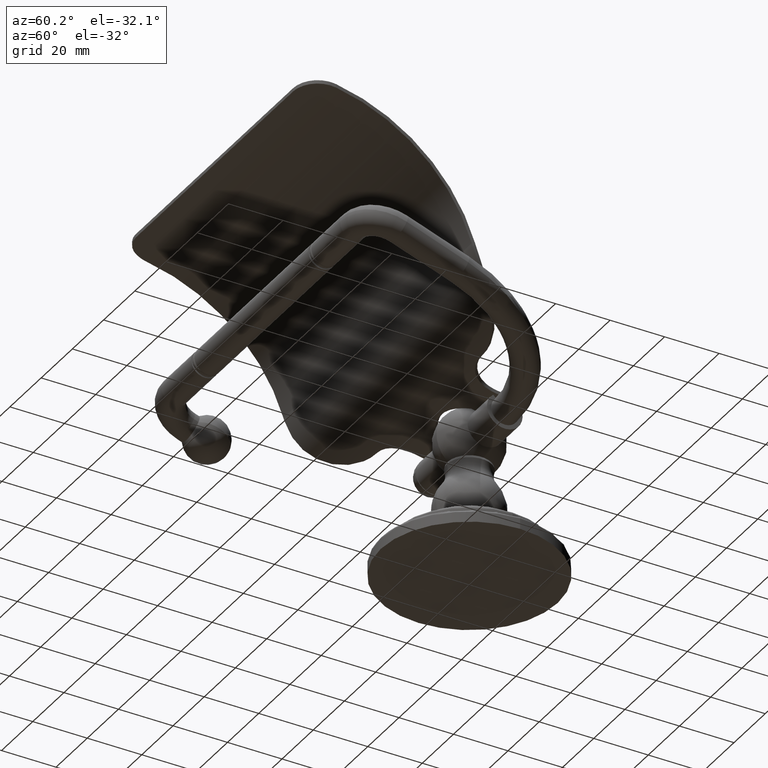
[diagram: clean part render]
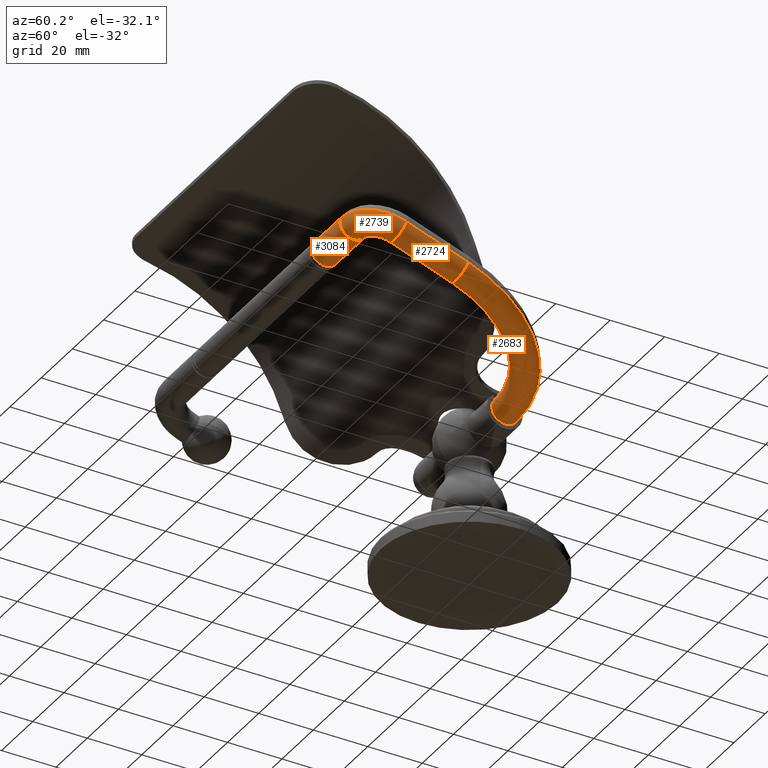
[diagram: same view with one multi-face feature highlighted, each face labeled with its STEP entity id]
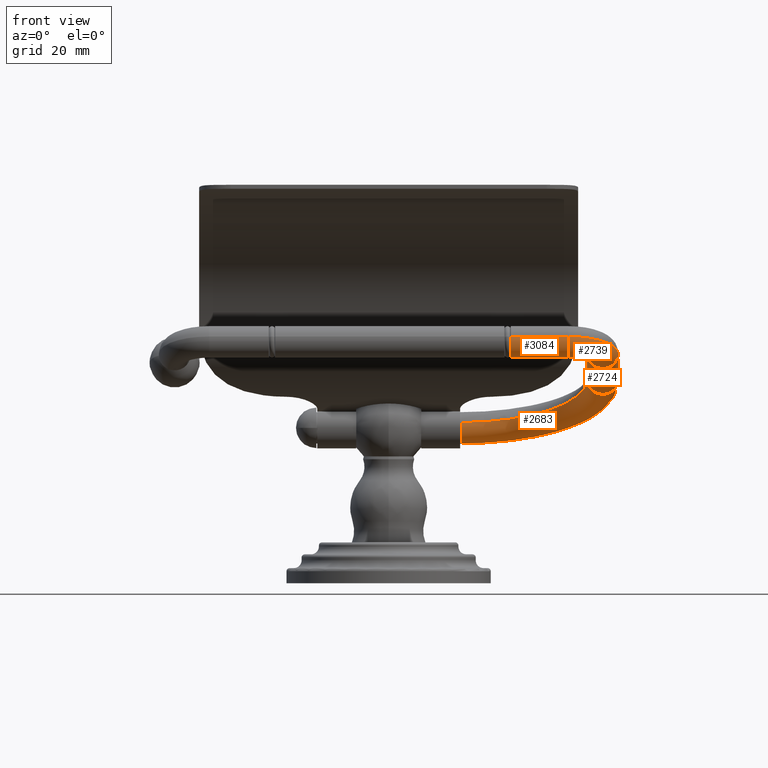
[diagram: same view with one multi-face feature highlighted, each face labeled with its STEP entity id]
A machine part, auxiliary view. The highlighted faces form ONE feature: a constant-radius fillet chain: 4 tangent blend faces with common blend radius 5.0038 mm. The faces share edges in the B-rep.
A second angle (front view) of the same feature is appended — it is thin or edge-on in the first view.
Their STEP definitions:
[1] entity #2683 (Torus):
#1146=CARTESIAN_POINT('',(9.11E-1,0.E0,1.947E0));
#1147=DIRECTION('',(1.E0,0.E0,0.E0));
#1148=DIRECTION('',(0.E0,-9.396926207859E-1,3.420201433257E-1));
#1149=AXIS2_PLACEMENT_3D('',#1146,#1147,#1148);
#1151=CARTESIAN_POINT('',(9.11E-1,-1.665135324033E0,2.553059693973E0));
#1152=DIRECTION('',(0.E0,-3.420201433257E-1,-9.396926207859E-1));
#1153=DIRECTION('',(0.E0,9.396926207859E-1,-3.420201433257E-1));
#1154=AXIS2_PLACEMENT_3D('',#1151,#1152,#1153);
#1161=CARTESIAN_POINT('',(9.11E-1,-1.665135324033E0,2.553059693973E0));
#1162=DIRECTION('',(0.E0,-3.420201433257E-1,-9.396926207859E-1));
#1163=DIRECTION('',(0.E0,9.396926207859E-1,-3.420201433257E-1));
#1164=AXIS2_PLACEMENT_3D('',#1161,#1162,#1163);
#1175=CARTESIAN_POINT('',(2.683E0,-1.665135324033E0,2.553059693973E0));
#1176=DIRECTION('',(0.E0,-9.396926207859E-1,3.420201433257E-1));
#1177=DIRECTION('',(-1.E0,0.E0,0.E0));
#1178=AXIS2_PLACEMENT_3D('',#1175,#1176,#1177);
#1502=CARTESIAN_POINT('',(9.11E-1,1.851194462948E-1,1.879622031765E0));
#1503=CARTESIAN_POINT('',(9.11E-1,-1.851194462948E-1,2.014377968235E0));
#1504=VERTEX_POINT('',#1502);
#1505=VERTEX_POINT('',#1503);
#1506=CARTESIAN_POINT('',(2.88E0,-1.665135324033E0,2.553059693973E0));
#1507=CARTESIAN_POINT('',(2.486E0,-1.665135324033E0,2.553059693973E0));
#1508=VERTEX_POINT('',#1506);
#1509=VERTEX_POINT('',#1507);
#2669=CARTESIAN_POINT('',(9.11E-1,-1.665135324033E0,2.553059693973E0));
#2670=DIRECTION('',(0.E0,-3.420201433257E-1,-9.396926207859E-1));
#2671=DIRECTION('',(0.E0,-9.396926207859E-1,3.420201433257E-1));
#2672=AXIS2_PLACEMENT_3D('',#2669,#2670,#2671);
#2673=TOROIDAL_SURFACE('',#2672,1.772E0,1.97E-1);
#2674=ORIENTED_EDGE('',*,*,#2663,.F.);
#2676=ORIENTED_EDGE('',*,*,#2675,.T.);
#2678=ORIENTED_EDGE('',*,*,#2677,.T.);
#2680=ORIENTED_EDGE('',*,*,#2679,.F.);
#2681=EDGE_LOOP('',(#2674,#2676,#2678,#2680));
#2682=FACE_OUTER_BOUND('',#2681,.F.);
#2683=ADVANCED_FACE('',(#2682),#2673,.T.);
#1150=CIRCLE('',#1149,1.97E-1);
#1155=CIRCLE('',#1154,1.575E0);
#1165=CIRCLE('',#1164,1.969E0);
#1179=CIRCLE('',#1178,1.97E-1);
#2663=EDGE_CURVE('',#1505,#1504,#1150,.T.);
#2675=EDGE_CURVE('',#1505,#1509,#1155,.T.);
#2677=EDGE_CURVE('',#1509,#1508,#1179,.T.);
#2679=EDGE_CURVE('',#1504,#1508,#1165,.T.);
[2] entity #2724 (Cylinder):
#1171=DIRECTION('',(0.E0,-9.396926207859E-1,3.420201433257E-1));
#1172=VECTOR('',#1171,9.45E-1);
#1173=CARTESIAN_POINT('',(2.88E0,-1.665135324033E0,2.553059693973E0));
#1174=LINE('',#1173,#1172);
#1175=CARTESIAN_POINT('',(2.683E0,-1.665135324033E0,2.553059693973E0));
#1176=DIRECTION('',(0.E0,-9.396926207859E-1,3.420201433257E-1));
#1177=DIRECTION('',(-1.E0,0.E0,0.E0));
#1178=AXIS2_PLACEMENT_3D('',#1175,#1176,#1177);
#1180=DIRECTION('',(0.E0,-9.396926207859E-1,3.420201433257E-1));
#1181=VECTOR('',#1180,9.45E-1);
#1182=CARTESIAN_POINT('',(2.486E0,-1.665135324033E0,2.553059693973E0));
#1183=LINE('',#1182,#1181);
#1184=CARTESIAN_POINT('',(2.683E0,-2.553144850675E0,2.876268729416E0));
#1185=DIRECTION('',(0.E0,-9.396926207859E-1,3.420201433257E-1));
#1186=DIRECTION('',(-1.E0,0.E0,0.E0));
#1187=AXIS2_PLACEMENT_3D('',#1184,#1185,#1186);
#1506=CARTESIAN_POINT('',(2.88E0,-1.665135324033E0,2.553059693973E0));
#1507=CARTESIAN_POINT('',(2.486E0,-1.665135324033E0,2.553059693973E0));
#1508=VERTEX_POINT('',#1506);
#1509=VERTEX_POINT('',#1507);
#1510=CARTESIAN_POINT('',(2.88E0,-2.553144850675E0,2.876268729416E0));
#1511=CARTESIAN_POINT('',(2.486E0,-2.553144850675E0,2.876268729416E0));
#1512=VERTEX_POINT('',#1510);
#1513=VERTEX_POINT('',#1511);
#2712=CARTESIAN_POINT('',(2.683E0,-1.665135324033E0,2.553059693973E0));
#2713=DIRECTION('',(0.E0,-9.396926207859E-1,3.420201433257E-1));
#2714=DIRECTION('',(1.E0,0.E0,0.E0));
#2715=AXIS2_PLACEMENT_3D('',#2712,#2713,#2714);
#2716=CYLINDRICAL_SURFACE('',#2715,1.97E-1);
#2717=ORIENTED_EDGE('',*,*,#2677,.F.);
#2718=ORIENTED_EDGE('',*,*,#2707,.T.);
#2720=ORIENTED_EDGE('',*,*,#2719,.T.);
#2721=ORIENTED_EDGE('',*,*,#2703,.F.);
#2722=EDGE_LOOP('',(#2717,#2718,#2720,#2721));
#2723=FACE_OUTER_BOUND('',#2722,.F.);
#2724=ADVANCED_FACE('',(#2723),#2716,.T.);
#1179=CIRCLE('',#1178,1.97E-1);
#1188=CIRCLE('',#1187,1.97E-1);
#2677=EDGE_CURVE('',#1509,#1508,#1179,.T.);
#2703=EDGE_CURVE('',#1508,#1512,#1174,.T.);
#2707=EDGE_CURVE('',#1509,#1513,#1183,.T.);
#2719=EDGE_CURVE('',#1513,#1512,#1188,.T.);
[3] entity #2739 (Torus):
#1184=CARTESIAN_POINT('',(2.683E0,-2.553144850675E0,2.876268729416E0));
#1185=DIRECTION('',(0.E0,-9.396926207859E-1,3.420201433257E-1));
#1186=DIRECTION('',(-1.E0,0.E0,0.E0));
#1187=AXIS2_PLACEMENT_3D('',#1184,#1185,#1186);
#1189=CARTESIAN_POINT('',(2.25E0,-2.553144850675E0,2.876268729416E0));
#1190=DIRECTION('',(0.E0,-3.420201433257E-1,-9.396926207859E-1));
#1191=DIRECTION('',(1.E0,0.E0,0.E0));
#1192=AXIS2_PLACEMENT_3D('',#1189,#1190,#1191);
#1199=CARTESIAN_POINT('',(2.25E0,-2.553144850675E0,2.876268729416E0));
#1200=DIRECTION('',(0.E0,-3.420201433257E-1,-9.396926207859E-1));
#1201=DIRECTION('',(1.E0,0.E0,0.E0));
#1202=AXIS2_PLACEMENT_3D('',#1199,#1200,#1201);
#1427=CARTESIAN_POINT('',(2.25E0,-2.960031755476E0,3.024363451476E0));
#1428=DIRECTION('',(-1.E0,0.E0,0.E0));
#1429=DIRECTION('',(0.E0,9.396926207859E-1,-3.420201433257E-1));
#1430=AXIS2_PLACEMENT_3D('',#1427,#1428,#1429);
#1510=CARTESIAN_POINT('',(2.88E0,-2.553144850675E0,2.876268729416E0));
#1511=CARTESIAN_POINT('',(2.486E0,-2.553144850675E0,2.876268729416E0));
#1512=VERTEX_POINT('',#1510);
#1513=VERTEX_POINT('',#1511);
#1514=CARTESIAN_POINT('',(2.25E0,-3.145151201770E0,3.091741419711E0));
#1515=CARTESIAN_POINT('',(2.25E0,-2.774912309181E0,2.956985483241E0));
#1516=VERTEX_POINT('',#1514);
#1517=VERTEX_POINT('',#1515);
#2725=CARTESIAN_POINT('',(2.25E0,-2.553144850675E0,2.876268729416E0));
#2726=DIRECTION('',(0.E0,-3.420201433257E-1,-9.396926207859E-1));
#2727=DIRECTION('',(-1.E0,0.E0,0.E0));
#2728=AXIS2_PLACEMENT_3D('',#2725,#2726,#2727);
#2729=TOROIDAL_SURFACE('',#2728,4.33E-1,1.97E-1);
#2730=ORIENTED_EDGE('',*,*,#2719,.F.);
#2732=ORIENTED_EDGE('',*,*,#2731,.T.);
#2734=ORIENTED_EDGE('',*,*,#2733,.T.);
#2736=ORIENTED_EDGE('',*,*,#2735,.F.);
#2737=EDGE_LOOP('',(#2730,#2732,#2734,#2736));
#2738=FACE_OUTER_BOUND('',#2737,.F.);
#2739=ADVANCED_FACE('',(#2738),#2729,.T.);
#1188=CIRCLE('',#1187,1.97E-1);
#1193=CIRCLE('',#1192,2.36E-1);
#1203=CIRCLE('',#1202,6.3E-1);
#1431=CIRCLE('',#1430,1.97E-1);
#2719=EDGE_CURVE('',#1513,#1512,#1188,.T.);
#2731=EDGE_CURVE('',#1513,#1517,#1193,.T.);
#2733=EDGE_CURVE('',#1517,#1516,#1431,.T.);
#2735=EDGE_CURVE('',#1512,#1516,#1203,.T.);
[4] entity #3084 (Cylinder):
#1214=DIRECTION('',(-1.E0,0.E0,0.E0));
#1215=VECTOR('',#1214,7.2E-1);
#1216=CARTESIAN_POINT('',(2.25E0,-3.145151201770E0,3.091741419711E0));
#1217=LINE('',#1216,#1215);
#1422=CARTESIAN_POINT('',(1.53E0,-2.960031755476E0,3.024363451476E0));
#1423=DIRECTION('',(-1.E0,0.E0,0.E0));
#1424=DIRECTION('',(0.E0,9.396926207859E-1,-3.420201433257E-1));
#1425=AXIS2_PLACEMENT_3D('',#1422,#1423,#1424);
#1427=CARTESIAN_POINT('',(2.25E0,-2.960031755476E0,3.024363451476E0));
#1428=DIRECTION('',(-1.E0,0.E0,0.E0));
#1429=DIRECTION('',(0.E0,9.396926207859E-1,-3.420201433257E-1));
#1430=AXIS2_PLACEMENT_3D('',#1427,#1428,#1429);
#1432=DIRECTION('',(-1.E0,0.E0,0.E0));
#1433=VECTOR('',#1432,7.2E-1);
#1434=CARTESIAN_POINT('',(2.25E0,-2.774912309181E0,2.956985483241E0));
#1435=LINE('',#1434,#1433);
#1514=CARTESIAN_POINT('',(2.25E0,-3.145151201770E0,3.091741419711E0));
#1515=CARTESIAN_POINT('',(2.25E0,-2.774912309181E0,2.956985483241E0));
#1516=VERTEX_POINT('',#1514);
#1517=VERTEX_POINT('',#1515);
#1540=CARTESIAN_POINT('',(1.53E0,-3.145151201770E0,3.091741419711E0));
#1541=CARTESIAN_POINT('',(1.53E0,-2.774912309181E0,2.956985483241E0));
#1542=VERTEX_POINT('',#1540);
#1543=VERTEX_POINT('',#1541);
#3073=CARTESIAN_POINT('',(2.25E0,-2.960031755476E0,3.024363451476E0));
#3074=DIRECTION('',(-1.E0,0.E0,0.E0));
#3075=DIRECTION('',(0.E0,-9.396926207859E-1,3.420201433257E-1));
#3076=AXIS2_PLACEMENT_3D('',#3073,#3074,#3075);
#3077=CYLINDRICAL_SURFACE('',#3076,1.97E-1);
#3078=ORIENTED_EDGE('',*,*,#3067,.T.);
#3079=ORIENTED_EDGE('',*,*,#2763,.F.);
#3080=ORIENTED_EDGE('',*,*,#2733,.F.);
#3081=ORIENTED_EDGE('',*,*,#2760,.T.);
#3082=EDGE_LOOP('',(#3078,#3079,#3080,#3081));
#3083=FACE_OUTER_BOUND('',#3082,.F.);
#3084=ADVANCED_FACE('',(#3083),#3077,.T.);
#1426=CIRCLE('',#1425,1.97E-1);
#1431=CIRCLE('',#1430,1.97E-1);
#2733=EDGE_CURVE('',#1517,#1516,#1431,.T.);
#2760=EDGE_CURVE('',#1517,#1543,#1435,.T.);
#2763=EDGE_CURVE('',#1516,#1542,#1217,.T.);
#3067=EDGE_CURVE('',#1543,#1542,#1426,.T.);